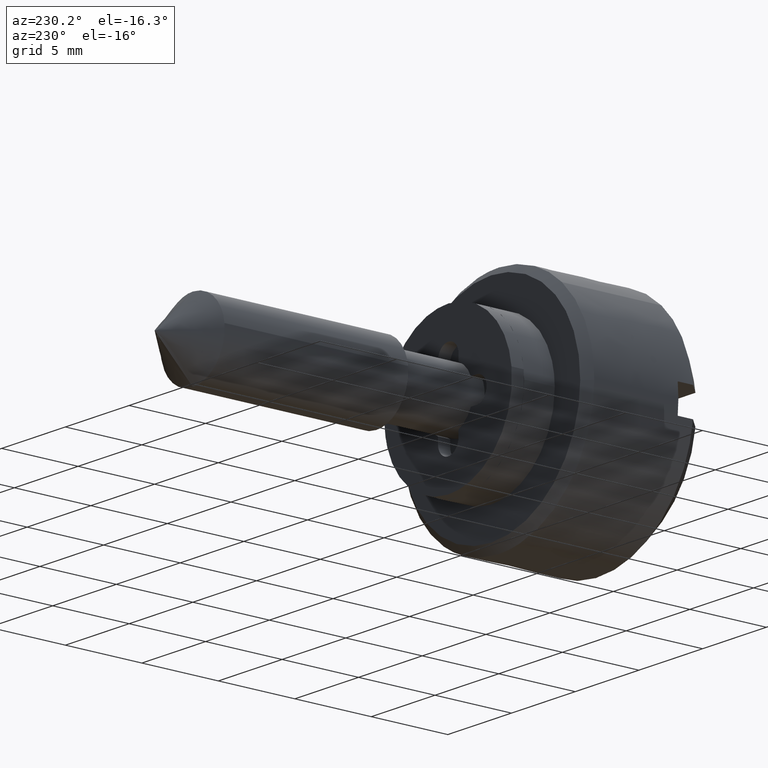
[diagram: clean part render]
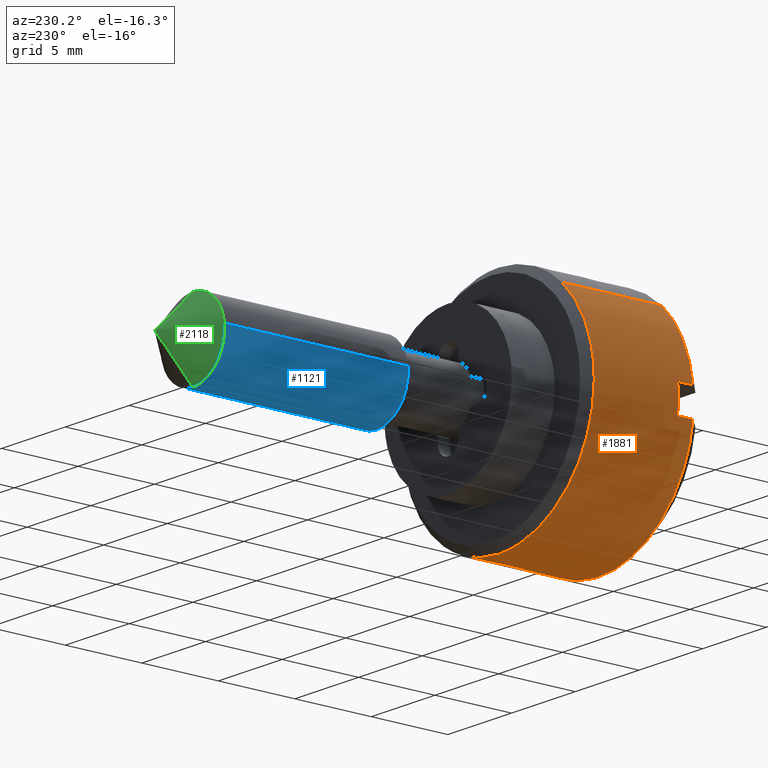
[diagram: same view with three faces highlighted in distinct colors, each labeled with its STEP entity id]
A machine part, auxiliary view with three faces highlighted in distinct colors.
Their STEP definitions:

[orange] entity #1881 — the highlighted face is a freeform B-spline surface patch.
#1461=CARTESIAN_POINT('',(-2.500000000001232,7.499714422982490,-0.065449016247301));
#1462=VERTEX_POINT('',#1461);
#1468=CARTESIAN_POINT('',(-2.499999999999945,4.969649642197117,5.617168542407208));
#1469=VERTEX_POINT('',#1468);
#1470=CARTESIAN_POINT('',(-2.499999999999945,4.969649642197117,5.617168542407208));
#1471=CARTESIAN_POINT('',(-2.499999999999945,7.499999999999999,3.378504808164826));
#1472=CARTESIAN_POINT('',(-2.499999999999945,7.500000000000000,0.0));
#1473=CARTESIAN_POINT('',(-2.499999999999945,7.500000000000001,-0.032725131164757));
#1474=CARTESIAN_POINT('',(-2.500000000001232,7.499714422982490,-0.065449016247301));
#1482=(BOUNDED_CURVE()B_SPLINE_CURVE(2,(#1470,#1471,#1472,#1473,#1474),.UNSPECIFIED.,.F.,.U.)B_SPLINE_CURVE_WITH_KNOTS((3,2,3),(0.615779849373332,0.750000000000000,0.751539894335433),.UNSPECIFIED.)CURVE()GEOMETRIC_REPRESENTATION_ITEM()RATIONAL_B_SPLINE_CURVE((0.854350164911228,0.842751312213315,1.0,0.998195901565850,0.996414028099374))REPRESENTATION_ITEM(''));
#1483=EDGE_CURVE('',#1469,#1462,#1482,.T.);
#1519=CARTESIAN_POINT('',(-2.499999999999945,-4.287827458873013,-6.153416586168036));
#1520=VERTEX_POINT('',#1519);
#1536=CARTESIAN_POINT('',(-2.499999999999945,0.0,-7.500000000000000));
#1537=VERTEX_POINT('',#1536);
#1538=CARTESIAN_POINT('',(-2.499999999999945,0.0,-7.500000000000000));
#1539=CARTESIAN_POINT('',(-2.499999999999945,-2.355359608241054,-7.500000000000000));
#1540=CARTESIAN_POINT('',(-2.499999999999944,-4.287827458873013,-6.153416586168036));
#1548=(BOUNDED_CURVE()B_SPLINE_CURVE(2,(#1538,#1539,#1540),.UNSPECIFIED.,.F.,.U.)B_SPLINE_CURVE_WITH_KNOTS((3,3),(0.0,0.098251831662011),.UNSPECIFIED.)CURVE()GEOMETRIC_REPRESENTATION_ITEM()RATIONAL_B_SPLINE_CURVE((1.0,0.884890819080784,0.860259141092983))REPRESENTATION_ITEM(''));
#1549=EDGE_CURVE('',#1537,#1520,#1548,.T.);
#1551=CARTESIAN_POINT('',(-2.500000000001232,7.499714422982490,-0.065449016247301));
#1552=CARTESIAN_POINT('',(-2.499999999999945,7.434834079443530,-7.500000000000001));
#1553=CARTESIAN_POINT('',(-2.499999999999945,0.0,-7.500000000000000));
#1561=(BOUNDED_CURVE()B_SPLINE_CURVE(2,(#1551,#1552,#1553),.UNSPECIFIED.,.F.,.U.)B_SPLINE_CURVE_WITH_KNOTS((3,3),(0.751539894335433,1.0),.UNSPECIFIED.)CURVE()GEOMETRIC_REPRESENTATION_ITEM()RATIONAL_B_SPLINE_CURVE((0.996414028099375,0.708910879620697,1.0))REPRESENTATION_ITEM(''));
#1562=EDGE_CURVE('',#1462,#1537,#1561,.T.);
#1785=CARTESIAN_POINT('',(-9.162397500000004,-4.287829581630136,-6.153415106987136));
#1786=CARTESIAN_POINT('',(-9.162397500000006,1.191735502885045,-9.971691763989039));
#1787=CARTESIAN_POINT('',(-9.162397500000004,5.617167905917516,-4.969650361618027));
#1788=CARTESIAN_POINT('',(-9.162397500000004,10.586818267535543,0.647517544299490));
#1789=CARTESIAN_POINT('',(-9.162397500000004,4.969650361618027,5.617167905917516));
#1790=CARTESIAN_POINT('',(-2.333440062499944,-4.287829581630136,-6.153415106987136));
#1791=CARTESIAN_POINT('',(-2.333440062499943,1.191735502885045,-9.971691763989039));
#1792=CARTESIAN_POINT('',(-2.333440062499943,5.617167905917516,-4.969650361618027));
#1793=CARTESIAN_POINT('',(-2.333440062499943,10.586818267535543,0.647517544299490));
#1794=CARTESIAN_POINT('',(-2.333440062499943,4.969650361618027,5.617167905917516));
#1802=(BOUNDED_SURFACE()B_SPLINE_SURFACE(2,1,((#1785,#1790),(#1786,#1791),(#1787,#1792),(#1788,#1793),(#1789,#1794)),.UNSPECIFIED.,.F.,.F.,.U.)B_SPLINE_SURFACE_WITH_KNOTS((3,2,3),(2,2),(0.0,11.432294321497420,23.858701192690258),(0.0,6.828957437500062),.UNSPECIFIED.)GEOMETRIC_REPRESENTATION_ITEM()RATIONAL_B_SPLINE_SURFACE(((0.956886118190660,0.956886118190660),(0.730538238691624,0.730538238691624),(1.0,1.0),(0.707106781186548,0.707106781186548),(1.0,1.0)))REPRESENTATION_ITEM('')SURFACE());
#1803=CARTESIAN_POINT('',(-8.999899999999988,-4.287828165019596,-6.153416094110790));
#1804=VERTEX_POINT('',#1803);
#1805=CARTESIAN_POINT('',(-8.999900000000000,7.445804187594519,-0.900000000000000));
#1806=VERTEX_POINT('',#1805);
#1807=CARTESIAN_POINT('',(-8.999899999999988,-4.287828165019596,-6.153416094110790));
#1808=CARTESIAN_POINT('',(-8.999900000000000,-2.355360081021675,-7.500000000000000));
#1809=CARTESIAN_POINT('',(-8.999900000000000,0.0,-7.500000000000000));
#1810=CARTESIAN_POINT('',(-8.999900000000002,6.648039453209386,-7.499999999999999));
#1811=CARTESIAN_POINT('',(-8.999900000000000,7.445804187594514,-0.900000000000002));
#1819=(BOUNDED_CURVE()B_SPLINE_CURVE(2,(#1807,#1808,#1809,#1810,#1811),.UNSPECIFIED.,.F.,.U.)B_SPLINE_CURVE_WITH_KNOTS((3,2,3),(0.288480248155529,0.500000000000000,1.0),.UNSPECIFIED.)CURVE()GEOMETRIC_REPRESENTATION_ITEM()RATIONAL_B_SPLINE_CURVE((0.877146962719209,0.893534273086041,1.0,0.748331477354788,1.0))REPRESENTATION_ITEM(''));
#1820=EDGE_CURVE('',#1804,#1806,#1819,.T.);
#1821=ORIENTED_EDGE('',*,*,#1820,.T.);
#1822=CARTESIAN_POINT('',(-7.999900000000001,7.445804187594550,-0.900000000000000));
#1823=VERTEX_POINT('',#1822);
#1824=CARTESIAN_POINT('',(-8.999900000000000,7.445804187594519,-0.900000000000000));
#1825=CARTESIAN_POINT('',(-7.999900000000001,7.445804187594550,-0.900000000000000));
#1826=QUASI_UNIFORM_CURVE('',1,(#1824,#1825),.UNSPECIFIED.,.F.,.U.);
#1827=EDGE_CURVE('',#1806,#1823,#1826,.T.);
#1828=ORIENTED_EDGE('',*,*,#1827,.T.);
#1829=CARTESIAN_POINT('',(-7.999900000000001,7.445804187594519,0.900000000000000));
#1830=VERTEX_POINT('',#1829);
#1831=CARTESIAN_POINT('',(-7.999900000000001,7.445804187594550,-0.900000000000000));
#1832=CARTESIAN_POINT('',(-7.999900000000001,7.554590287737940,-2.710505E-015));
#1833=CARTESIAN_POINT('',(-7.999900000000001,7.445804187594514,0.899999999999998));
#1841=(BOUNDED_CURVE()B_SPLINE_CURVE(2,(#1831,#1832,#1833),.UNSPECIFIED.,.F.,.U.)CURVE()GEOMETRIC_REPRESENTATION_ITEM()QUASI_UNIFORM_CURVE()RATIONAL_B_SPLINE_CURVE((1.0,0.992773891679269,1.0))REPRESENTATION_ITEM(''));
#1842=EDGE_CURVE('',#1823,#1830,#1841,.T.);
#1843=ORIENTED_EDGE('',*,*,#1842,.T.);
#1844=CARTESIAN_POINT('',(-8.999900000000000,7.445804187594519,0.900000000000000));
#1845=VERTEX_POINT('',#1844);
#1846=CARTESIAN_POINT('',(-7.999900000000001,7.445804187594519,0.900000000000000));
#1847=CARTESIAN_POINT('',(-8.999900000000000,7.445804187594519,0.900000000000000));
#1848=QUASI_UNIFORM_CURVE('',1,(#1846,#1847),.UNSPECIFIED.,.F.,.U.);
#1849=EDGE_CURVE('',#1830,#1845,#1848,.T.);
#1850=ORIENTED_EDGE('',*,*,#1849,.T.);
#1851=CARTESIAN_POINT('',(-8.999900000000000,4.969650341754682,5.617167923491120));
#1852=VERTEX_POINT('',#1851);
#1853=CARTESIAN_POINT('',(-8.999900000000000,7.445804187594514,0.899999999999999));
#1854=CARTESIAN_POINT('',(-8.999900000000000,7.103855276766113,3.728982924654993));
#1855=CARTESIAN_POINT('',(-8.999900000000000,4.969650341754682,5.617167923491120));
#1863=(BOUNDED_CURVE()B_SPLINE_CURVE(2,(#1853,#1854,#1855),.UNSPECIFIED.,.F.,.U.)B_SPLINE_CURVE_WITH_KNOTS((3,3),(0.0,0.250310219562020),.UNSPECIFIED.)CURVE()GEOMETRIC_REPRESENTATION_ITEM()RATIONAL_B_SPLINE_CURVE((1.0,0.874009593679655,0.874165932434325))REPRESENTATION_ITEM(''));
#1864=EDGE_CURVE('',#1845,#1852,#1863,.T.);
#1865=ORIENTED_EDGE('',*,*,#1864,.T.);
#1866=CARTESIAN_POINT('',(-8.999900000000000,4.969650341754682,5.617167923491120));
#1867=CARTESIAN_POINT('',(-2.499999999999945,4.969649642197117,5.617168542407208));
#1868=QUASI_UNIFORM_CURVE('',1,(#1866,#1867),.UNSPECIFIED.,.F.,.U.);
#1869=EDGE_CURVE('',#1852,#1469,#1868,.T.);
#1870=ORIENTED_EDGE('',*,*,#1869,.T.);
#1871=ORIENTED_EDGE('',*,*,#1483,.T.);
#1872=ORIENTED_EDGE('',*,*,#1562,.T.);
#1873=ORIENTED_EDGE('',*,*,#1549,.T.);
#1874=CARTESIAN_POINT('',(-8.999899999999988,-4.287828165019596,-6.153416094110790));
#1875=CARTESIAN_POINT('',(-2.499999999999945,-4.287827458873013,-6.153416586168036));
#1876=QUASI_UNIFORM_CURVE('',1,(#1874,#1875),.UNSPECIFIED.,.F.,.U.);
#1877=EDGE_CURVE('',#1804,#1520,#1876,.T.);
#1878=ORIENTED_EDGE('',*,*,#1877,.F.);
#1879=EDGE_LOOP('',(#1821,#1828,#1843,#1850,#1865,#1870,#1871,#1872,#1873,#1878));
#1880=FACE_OUTER_BOUND('',#1879,.T.);
#1881=ADVANCED_FACE('',(#1880),#1802,.T.);

[blue] entity #1121 — the highlighted face is a freeform B-spline surface patch.
#1019=CARTESIAN_POINT('',(17.800000000000004,2.482523815909166,0.295085586641896));
#1020=CARTESIAN_POINT('',(17.800000000000008,2.490969038621514,0.224036821594944));
#1021=CARTESIAN_POINT('',(17.800000000000001,2.495336996054667,0.152621348837143));
#1022=CARTESIAN_POINT('',(17.800000000000004,2.647958344891809,-2.342715647217524));
#1023=CARTESIAN_POINT('',(17.800000000000001,0.152621348837143,-2.495336996054667));
#1024=CARTESIAN_POINT('',(17.800000000000004,-2.342715647217524,-2.647958344891809));
#1025=CARTESIAN_POINT('',(17.800000000000001,-2.495336996054667,-0.152621348837143));
#1026=CARTESIAN_POINT('',(5.192500000000000,2.482523815909166,0.295085586641896));
#1027=CARTESIAN_POINT('',(5.192500000000001,2.490969038621514,0.224036821594944));
#1028=CARTESIAN_POINT('',(5.192499999999999,2.495336996054667,0.152621348837143));
#1029=CARTESIAN_POINT('',(5.192499999999998,2.647958344891809,-2.342715647217524));
#1030=CARTESIAN_POINT('',(5.192499999999999,0.152621348837143,-2.495336996054667));
#1031=CARTESIAN_POINT('',(5.192499999999998,-2.342715647217524,-2.647958344891809));
#1032=CARTESIAN_POINT('',(5.192499999999999,-2.495336996054667,-0.152621348837143));
#1040=(BOUNDED_SURFACE()B_SPLINE_SURFACE(2,1,((#1019,#1026),(#1020,#1027),(#1021,#1028),(#1022,#1029),(#1023,#1030),(#1024,#1031),(#1025,#1032)),.UNSPECIFIED.,.F.,.F.,.U.)B_SPLINE_SURFACE_WITH_KNOTS((3,2,2,3),(2,2),(0.0,0.165685424949238,4.307821048680188,8.449956672411137),(0.0,12.607500000000000),.UNSPECIFIED.)GEOMETRIC_REPRESENTATION_ITEM()RATIONAL_B_SPLINE_SURFACE(((0.977505800795127,0.977505800795127),(0.988284271247462,0.988284271247462),(1.0,1.0),(0.707106781186548,0.707106781186548),(1.0,1.0),(0.707106781186548,0.707106781186548),(1.0,1.0)))REPRESENTATION_ITEM('')SURFACE());
#1041=CARTESIAN_POINT('',(17.500000000000000,2.482523815906038,0.295085586668208));
#1042=VERTEX_POINT('',#1041);
#1043=CARTESIAN_POINT('',(17.499999999999989,0.0,-2.499999999999983));
#1044=VERTEX_POINT('',#1043);
#1045=CARTESIAN_POINT('',(17.500000000000000,2.482523815906039,0.295085586668208));
#1046=CARTESIAN_POINT('',(17.500000000000000,2.500000000000000,0.148060299156365));
#1047=CARTESIAN_POINT('',(17.500000000000000,2.500000000000000,0.0));
#1048=CARTESIAN_POINT('',(17.499999999999996,2.500000000000000,-2.500000000000000));
#1049=CARTESIAN_POINT('',(17.500000000000000,0.0,-2.500000000000000));
#1057=(BOUNDED_CURVE()B_SPLINE_CURVE(2,(#1045,#1046,#1047,#1048,#1049),.UNSPECIFIED.,.F.,.U.)B_SPLINE_CURVE_WITH_KNOTS((3,2,3),(0.459124947024123,0.500000000000000,1.0),.UNSPECIFIED.)CURVE()GEOMETRIC_REPRESENTATION_ITEM()RATIONAL_B_SPLINE_CURVE((0.956026754180864,0.976055948329450,1.0,0.707106781186548,1.0))REPRESENTATION_ITEM(''));
#1058=EDGE_CURVE('',#1042,#1044,#1057,.T.);
#1059=ORIENTED_EDGE('',*,*,#1058,.T.);
#1060=CARTESIAN_POINT('',(17.500000000000000,-2.495337050234264,-0.152620463003394));
#1061=VERTEX_POINT('',#1060);
#1062=CARTESIAN_POINT('',(17.500000000000000,0.0,-2.500000000000000));
#1063=CARTESIAN_POINT('',(17.499999999999996,-2.351766840117718,-2.500000000000000));
#1064=CARTESIAN_POINT('',(17.500000000000004,-2.495337050234264,-0.152620463003394));
#1072=(BOUNDED_CURVE()B_SPLINE_CURVE(2,(#1062,#1063,#1064),.UNSPECIFIED.,.F.,.U.)B_SPLINE_CURVE_WITH_KNOTS((3,3),(0.0,0.478666169497395),.UNSPECIFIED.)CURVE()GEOMETRIC_REPRESENTATION_ITEM()RATIONAL_B_SPLINE_CURVE((1.0,0.719603849757605,0.976072304228583))REPRESENTATION_ITEM(''));
#1073=EDGE_CURVE('',#1044,#1061,#1072,.T.);
#1074=ORIENTED_EDGE('',*,*,#1073,.T.);
#1075=CARTESIAN_POINT('',(5.500000000000001,-2.495337049582929,-0.152620473652755));
#1076=VERTEX_POINT('',#1075);
#1077=CARTESIAN_POINT('',(17.500000000000000,-2.495337050234264,-0.152620463003394));
#1078=CARTESIAN_POINT('',(5.500000000000001,-2.495337049582929,-0.152620473652755));
#1079=QUASI_UNIFORM_CURVE('',1,(#1077,#1078),.UNSPECIFIED.,.F.,.U.);
#1080=EDGE_CURVE('',#1061,#1076,#1079,.T.);
#1081=ORIENTED_EDGE('',*,*,#1080,.T.);
#1082=CARTESIAN_POINT('',(5.500000000000000,0.0,-2.500000000000000));
#1083=VERTEX_POINT('',#1082);
#1084=CARTESIAN_POINT('',(5.500000000000000,0.0,-2.500000000000000));
#1085=CARTESIAN_POINT('',(5.500000000000000,-2.351766820006904,-2.500000000000000));
#1086=CARTESIAN_POINT('',(5.500000000000002,-2.495337049582929,-0.152620473652755));
#1094=(BOUNDED_CURVE()B_SPLINE_CURVE(2,(#1084,#1085,#1086),.UNSPECIFIED.,.F.,.U.)B_SPLINE_CURVE_WITH_KNOTS((3,3),(0.500000000000000,0.739333083275939),.UNSPECIFIED.)CURVE()GEOMETRIC_REPRESENTATION_ITEM()RATIONAL_B_SPLINE_CURVE((1.0,0.719603851483049,0.976072301072178))REPRESENTATION_ITEM(''));
#1095=EDGE_CURVE('',#1083,#1076,#1094,.T.);
#1096=ORIENTED_EDGE('',*,*,#1095,.F.);
#1097=CARTESIAN_POINT('',(5.500000000000000,2.482523815906038,0.295085586668207));
#1098=VERTEX_POINT('',#1097);
#1099=CARTESIAN_POINT('',(5.499999999999999,2.482523815906039,0.295085586668207));
#1100=CARTESIAN_POINT('',(5.500000000000001,2.500000000000000,0.148060299156365));
#1101=CARTESIAN_POINT('',(5.500000000000000,2.500000000000000,0.0));
#1102=CARTESIAN_POINT('',(5.500000000000001,2.500000000000000,-2.500000000000000));
#1103=CARTESIAN_POINT('',(5.500000000000000,0.0,-2.500000000000000));
#1111=(BOUNDED_CURVE()B_SPLINE_CURVE(2,(#1099,#1100,#1101,#1102,#1103),.UNSPECIFIED.,.F.,.U.)B_SPLINE_CURVE_WITH_KNOTS((3,2,3),(0.229562473512062,0.250000000000000,0.500000000000000),.UNSPECIFIED.)CURVE()GEOMETRIC_REPRESENTATION_ITEM()RATIONAL_B_SPLINE_CURVE((0.956026754180864,0.976055948329450,1.0,0.707106781186548,1.0))REPRESENTATION_ITEM(''));
#1112=EDGE_CURVE('',#1098,#1083,#1111,.T.);
#1113=ORIENTED_EDGE('',*,*,#1112,.F.);
#1114=CARTESIAN_POINT('',(17.500000000000000,2.482523815906038,0.295085586668208));
#1115=CARTESIAN_POINT('',(5.500000000000000,2.482523815906038,0.295085586668207));
#1116=QUASI_UNIFORM_CURVE('',1,(#1114,#1115),.UNSPECIFIED.,.F.,.U.);
#1117=EDGE_CURVE('',#1042,#1098,#1116,.T.);
#1118=ORIENTED_EDGE('',*,*,#1117,.F.);
#1119=EDGE_LOOP('',(#1059,#1074,#1081,#1096,#1113,#1118));
#1120=FACE_OUTER_BOUND('',#1119,.T.);
#1121=ADVANCED_FACE('',(#1120),#1040,.T.);

[green] entity #2118 — the highlighted face is a freeform B-spline surface patch.
#1041=CARTESIAN_POINT('',(17.500000000000000,2.482523815906038,0.295085586668208));
#1042=VERTEX_POINT('',#1041);
#1043=CARTESIAN_POINT('',(17.499999999999989,0.0,-2.499999999999983));
#1044=VERTEX_POINT('',#1043);
#1045=CARTESIAN_POINT('',(17.500000000000000,2.482523815906039,0.295085586668208));
#1046=CARTESIAN_POINT('',(17.500000000000000,2.500000000000000,0.148060299156365));
#1047=CARTESIAN_POINT('',(17.500000000000000,2.500000000000000,0.0));
#1048=CARTESIAN_POINT('',(17.499999999999996,2.500000000000000,-2.500000000000000));
#1049=CARTESIAN_POINT('',(17.500000000000000,0.0,-2.500000000000000));
#1057=(BOUNDED_CURVE()B_SPLINE_CURVE(2,(#1045,#1046,#1047,#1048,#1049),.UNSPECIFIED.,.F.,.U.)B_SPLINE_CURVE_WITH_KNOTS((3,2,3),(0.459124947024123,0.500000000000000,1.0),.UNSPECIFIED.)CURVE()GEOMETRIC_REPRESENTATION_ITEM()RATIONAL_B_SPLINE_CURVE((0.956026754180864,0.976055948329450,1.0,0.707106781186548,1.0))REPRESENTATION_ITEM(''));
#1058=EDGE_CURVE('',#1042,#1044,#1057,.T.);
#1140=CARTESIAN_POINT('',(17.499999999999989,0.0,2.499999999999983));
#1141=VERTEX_POINT('',#1140);
#1142=CARTESIAN_POINT('',(17.500000000000000,0.0,2.500000000000000));
#1143=CARTESIAN_POINT('',(17.499999999999993,2.220436314831020,2.499999999999999));
#1144=CARTESIAN_POINT('',(17.500000000000004,2.482523815906038,0.295085586668208));
#1152=(BOUNDED_CURVE()B_SPLINE_CURVE(2,(#1142,#1143,#1144),.UNSPECIFIED.,.F.,.U.)B_SPLINE_CURVE_WITH_KNOTS((3,3),(0.0,0.459124947024123),.UNSPECIFIED.)CURVE()GEOMETRIC_REPRESENTATION_ITEM()RATIONAL_B_SPLINE_CURVE((1.0,0.731050832857097,0.956026754180864))REPRESENTATION_ITEM(''));
#1153=EDGE_CURVE('',#1141,#1042,#1152,.T.);
#1989=CARTESIAN_POINT('',(20.0,0.0,0.0));
#1990=VERTEX_POINT('',#1989);
#1991=CARTESIAN_POINT('',(20.0,0.0,0.0));
#1992=CARTESIAN_POINT('',(17.499999999999989,0.0,2.499999999999983));
#1993=QUASI_UNIFORM_CURVE('',1,(#1991,#1992),.UNSPECIFIED.,.F.,.U.);
#1994=EDGE_CURVE('',#1990,#1141,#1993,.T.);
#1998=CARTESIAN_POINT('',(20.0,0.0,0.0));
#1999=CARTESIAN_POINT('',(17.499999999999989,0.0,-2.499999999999983));
#2000=QUASI_UNIFORM_CURVE('',1,(#1998,#1999),.UNSPECIFIED.,.F.,.U.);
#2001=EDGE_CURVE('',#1990,#1044,#2000,.T.);
#2094=CARTESIAN_POINT('',(20.0,0.0,0.0));
#2095=CARTESIAN_POINT('',(17.435937499999991,-0.067119331520657,-2.563183859820054));
#2096=CARTESIAN_POINT('',(20.0,0.0,0.0));
#2097=CARTESIAN_POINT('',(17.435937499999994,2.633912877398660,-2.633912877398667));
#2098=CARTESIAN_POINT('',(20.0,0.0,0.0));
#2099=CARTESIAN_POINT('',(17.435937499999991,2.563183859820054,0.067119331520650));
#2100=CARTESIAN_POINT('',(20.0,0.0,0.0));
#2101=CARTESIAN_POINT('',(17.435937499999994,2.492454842241449,2.768151540439967));
#2102=CARTESIAN_POINT('',(20.0,0.0,0.0));
#2103=CARTESIAN_POINT('',(17.435937499999991,-0.201174025139667,2.556158351025013));
#2111=(BOUNDED_SURFACE()B_SPLINE_SURFACE(1,2,((#2094,#2096,#2098,#2100,#2102),(#2095,#2097,#2099,#2101,#2103)),.UNSPECIFIED.,.F.,.F.,.U.)B_SPLINE_SURFACE_WITH_KNOTS((2,2),(3,2,3),(0.0,1.0),(0.0,1.0,2.0),.UNSPECIFIED.)GEOMETRIC_REPRESENTATION_ITEM()RATIONAL_B_SPLINE_SURFACE(((1.0,0.688354575693754,1.0,0.688354575693754,1.0),(1.0,0.688354575693754,1.0,0.688354575693754,1.0)))REPRESENTATION_ITEM('')SURFACE());
#2112=ORIENTED_EDGE('',*,*,#2001,.T.);
#2113=ORIENTED_EDGE('',*,*,#1058,.F.);
#2114=ORIENTED_EDGE('',*,*,#1153,.F.);
#2115=ORIENTED_EDGE('',*,*,#1994,.F.);
#2116=EDGE_LOOP('',(#2112,#2113,#2114,#2115));
#2117=FACE_OUTER_BOUND('',#2116,.T.);
#2118=ADVANCED_FACE('',(#2117),#2111,.T.);